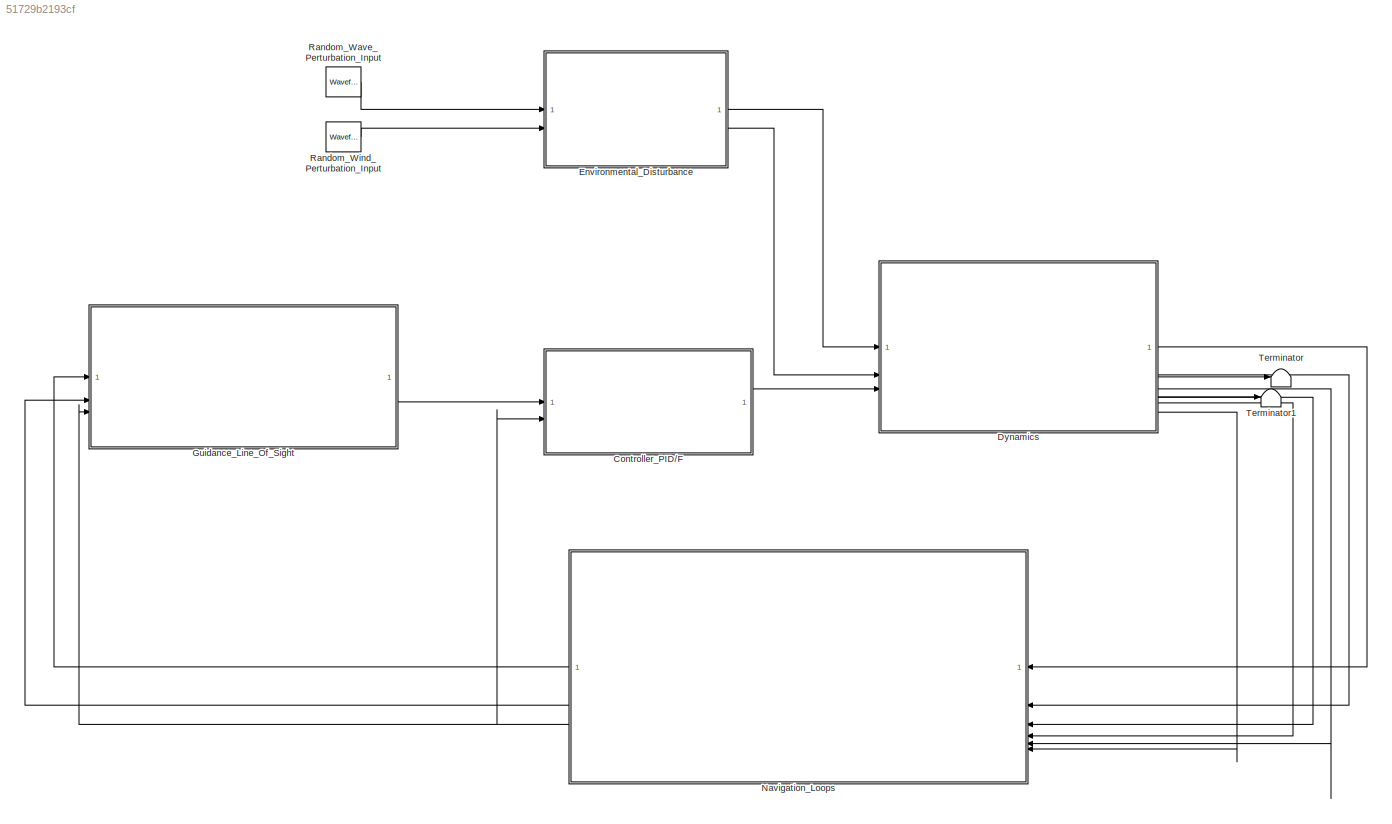
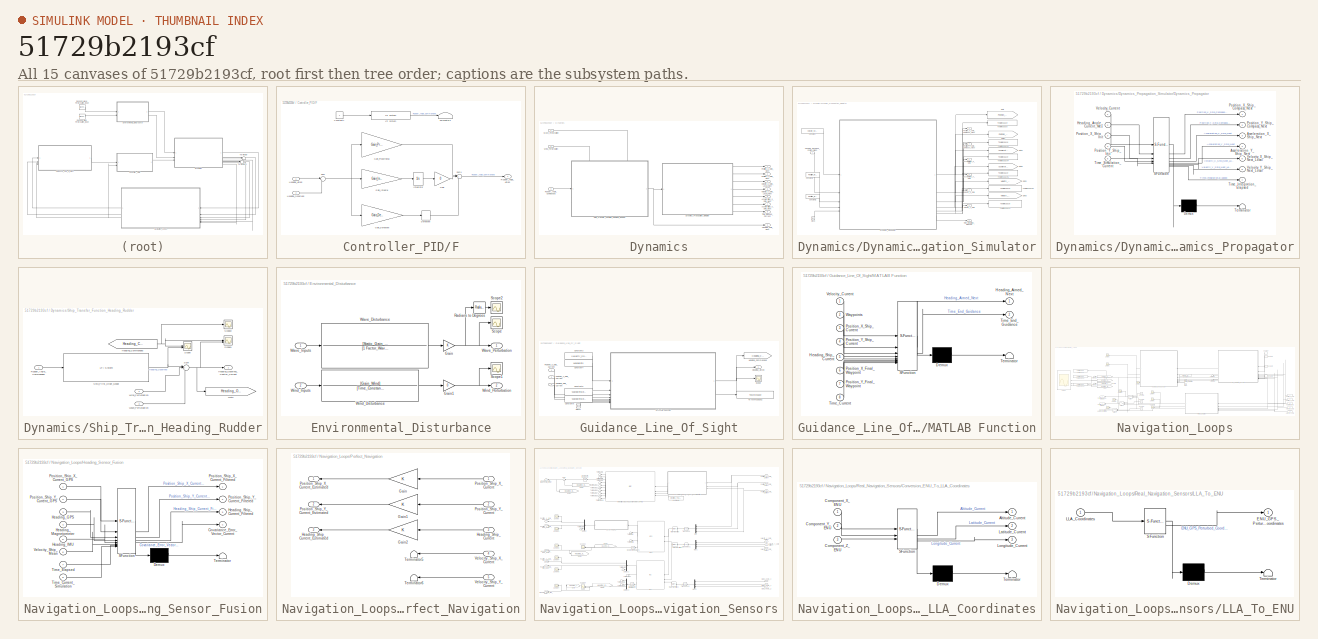
[diagram: thumbnail index - all 15 canvases of the model, root first then tree order]
MODEL slx_51729b2193cf
KIND model
CONFIG AbsTol = auto
CONFIG EnableMultiTasking = off
CONFIG FixedStep = auto
CONFIG MaxStep = auto
CONFIG MinStep = auto
CONFIG RelTol = 1e-3
CONFIG SampleTimeConstraint = Unconstrained
CONFIG SolverName = VariableStepAuto
CONFIG StartTime = 0.0
CONFIG StopTime = 2800
BLOCK [SubSystem] Controller_PID//F
BLOCK [Constant] Controller_PID//F/Constant7
BLOCK [Derivative] Controller_PID//F/Derivative
BLOCK [Gain] Controller_PID//F/Gain
  Gain = 0
BLOCK [Gain] Controller_PID//F/Gain_Derivative
  Gain = Gain_Derivative_Controller
BLOCK [Gain] Controller_PID//F/Gain_Integral
  Gain = Gain_Integral_Controller
BLOCK [Gain] Controller_PID//F/Gain_Proportional
  Gain = Gain_Proportional_Controller
BLOCK [Inport] Controller_PID//F/Heading_Aimed
BLOCK [Inport] Controller_PID//F/Heading_Observed
  Port = 2
BLOCK [Integrator] Controller_PID//F/Integrator
  InitialCondition = -5*(pi/180)
BLOCK [Reference] Controller_PID//F/LTI System  REF=cstblocks/LTI System
  SourceBlock = cstblocks/LTI System
  SourceType = LTI Block
BLOCK [Outport] Controller_PID//F/Rudder_Angle_Aimed
BLOCK [Sum] Controller_PID//F/Sum
  Inputs = |+-
BLOCK [Sum] Controller_PID//F/Sum1
  Inputs = |+++
BLOCK [Terminator] Controller_PID//F/Terminator3
BLOCK [SubSystem] Dynamics
BLOCK [Outport] Dynamics/Acceleration_X_Ship_Next
  Port = 6
BLOCK [Outport] Dynamics/Acceleration_Y_Ship_Next
  Port = 7
BLOCK [SubSystem] Dynamics/Dynamics_Propagation_Simulator
BLOCK [Outport] Dynamics/Dynamics_Propagation_Simulator/Acceleration_X_Ship
  Port = 5
BLOCK [Outport] Dynamics/Dynamics_Propagation_Simulator/Acceleration_Y_Ship
  Port = 6
BLOCK [Clock] Dynamics/Dynamics_Propagation_Simulator/Clock
BLOCK [Constant] Dynamics/Dynamics_Propagation_Simulator/Constant
  Value = Velocity_Ship_Mean
BLOCK [Constant] Dynamics/Dynamics_Propagation_Simulator/Constant1
  Value = Position_Initial_X
BLOCK [Constant] Dynamics/Dynamics_Propagation_Simulator/Constant2
  Value = Position_Initial_Y
BLOCK [SubSystem] Dynamics/Dynamics_Propagation_Simulator/Dynamics_Propagator
  ErrorFcn = Stateflow.Translate.translate
  PermitHierarchicalResolution = ExplicitOnly
  SFBlockType = MATLAB Function
  TreatAsAtomicUnit = on
BLOCK [Demux] Dynamics/Dynamics_Propagation_Simulator/Dynamics_Propagator/ Demux 
  Outputs = 1
BLOCK [S-Function] Dynamics/Dynamics_Propagation_Simulator/Dynamics_Propagator/ SFunction 
  EnableBusSupport = on
  FunctionName = sf_sfun
  PortCounts = [5 8]
  SFcnIsStateOwnerBlock = off
  SFunctionDeploymentMode = off
  Tag = Stateflow S-Function 2
BLOCK [Terminator] Dynamics/Dynamics_Propagation_Simulator/Dynamics_Propagator/ Terminator 
BLOCK [Outport] Dynamics/Dynamics_Propagation_Simulator/Dynamics_Propagator/Acceleration_X_Ship_Next
  Port = 3
BLOCK [Outport] Dynamics/Dynamics_Propagation_Simulator/Dynamics_Propagator/Acceleration_Y_Ship_Next
  Port = 4
BLOCK [Inport] Dynamics/Dynamics_Propagation_Simulator/Dynamics_Propagator/Heading_Angle_Current_Mes
  Port = 2
BLOCK [Outport] Dynamics/Dynamics_Propagation_Simulator/Dynamics_Propagator/Position_X_Ship_Compass_Next
BLOCK [Inport] Dynamics/Dynamics_Propagation_Simulator/Dynamics_Propagator/Position_X_Ship_Init
  Port = 3
BLOCK [Outport] Dynamics/Dynamics_Propagation_Simulator/Dynamics_Propagator/Position_Y_Ship_Compass_Next
  Port = 2
BLOCK [Inport] Dynamics/Dynamics_Propagation_Simulator/Dynamics_Propagator/Position_Y_Ship_Init
  Port = 4
BLOCK [Outport] Dynamics/Dynamics_Propagation_Simulator/Dynamics_Propagator/Time_Integration_Elapsed
  Port = 7
BLOCK [Inport] Dynamics/Dynamics_Propagation_Simulator/Dynamics_Propagator/Time_Simulation_Current
  Port = 5
BLOCK [Inport] Dynamics/Dynamics_Propagation_Simulator/Dynamics_Propagator/Velocity_Current
BLOCK [Outport] Dynamics/Dynamics_Propagation_Simulator/Dynamics_Propagator/Velocity_X_Ship_Next_Local
  Port = 5
BLOCK [Outport] Dynamics/Dynamics_Propagation_Simulator/Dynamics_Propagator/Velocity_Y_Ship_Next_Local
  Port = 6
BLOCK [Goto] Dynamics/Dynamics_Propagation_Simulator/Goto
  GotoTag = Position_Ship_X_Axis_Current
  TagVisibility = global
BLOCK [Goto] Dynamics/Dynamics_Propagation_Simulator/Goto1
  GotoTag = Position_Ship_Y_Axis_Current
  TagVisibility = global
BLOCK [Goto] Dynamics/Dynamics_Propagation_Simulator/Goto2
  GotoTag = Velocity_Ship_X_Axis_Current
  TagVisibility = global
BLOCK [Goto] Dynamics/Dynamics_Propagation_Simulator/Goto3
  GotoTag = Velocity_Ship_Y_Axis_Current
  TagVisibility = global
BLOCK [Goto] Dynamics/Dynamics_Propagation_Simulator/Goto4
  GotoTag = Acceleration_Ship_X_Axis
  TagVisibility = global
BLOCK [Goto] Dynamics/Dynamics_Propagation_Simulator/Goto5
  GotoTag = Acceleration_Ship_Y_Axis
  TagVisibility = global
BLOCK [Inport] Dynamics/Dynamics_Propagation_Simulator/Heading_Observed_Control_Current
BLOCK [Outport] Dynamics/Dynamics_Propagation_Simulator/Position_X_Ship_Compass_Next
BLOCK [Outport] Dynamics/Dynamics_Propagation_Simulator/Position_Y_Ship_Compass_Next
  Port = 2
BLOCK [Outport] Dynamics/Dynamics_Propagation_Simulator/Time_Integration_Elapsed
  Port = 7
BLOCK [ToWorkspace] Dynamics/Dynamics_Propagation_Simulator/To Workspace
  FixptAsFi = on
  MaxDataPoints = inf
  SampleTime = -1
  SaveFormat = Timeseries
  VariableName = Position_Along_X_Axis
BLOCK [ToWorkspace] Dynamics/Dynamics_Propagation_Simulator/To Workspace1
  FixptAsFi = on
  MaxDataPoints = inf
  SampleTime = -1
  SaveFormat = Timeseries
  VariableName = Position_Along_Y_Axis
BLOCK [ToWorkspace] Dynamics/Dynamics_Propagation_Simulator/To Workspace4
  FixptAsFi = on
  MaxDataPoints = inf
  SampleTime = -1
  SaveFormat = Timeseries
  VariableName = Acceleration_Along_X_Axis
BLOCK [ToWorkspace] Dynamics/Dynamics_Propagation_Simulator/To Workspace5
  FixptAsFi = on
  MaxDataPoints = inf
  SampleTime = -1
  SaveFormat = Timeseries
  VariableName = Acceleration_Along_Y_Axis
BLOCK [ToWorkspace] Dynamics/Dynamics_Propagation_Simulator/To Workspace6
  FixptAsFi = on
  MaxDataPoints = inf
  SampleTime = -1
  SaveFormat = Timeseries
  VariableName = Velocity_Along_X_Axis_Local
BLOCK [ToWorkspace] Dynamics/Dynamics_Propagation_Simulator/To Workspace7
  FixptAsFi = on
  MaxDataPoints = inf
  SampleTime = -1
  SaveFormat = Timeseries
  VariableName = Velocity_Along_Y_Axis_Local
BLOCK [Outport] Dynamics/Dynamics_Propagation_Simulator/Velocity_X_Ship
  Port = 3
BLOCK [Outport] Dynamics/Dynamics_Propagation_Simulator/Velocity_Y_Ship
  Port = 4
BLOCK [Outport] Dynamics/Heading_Ship_Next
  Port = 3
BLOCK [Outport] Dynamics/Position_X_Ship_Next
BLOCK [Outport] Dynamics/Position_Y_Ship_Next
  Port = 2
BLOCK [Inport] Dynamics/Rudder_Angle_Commanded
  Port = 3
BLOCK [SubSystem] Dynamics/Ship_Transfer_Function_Heading_Rudder
  PortSchema = {"entries":[{"content":{"sides":[{"content":{"connectorIds":["In1"]},"type":"ConnectorPlacement.EquallySpacedRectSide","uuid":"39a47681-8a87-4f22-9e16-0ead526089e0"},{"content":{"connectorIds":["Out1"],"side":"RIGHT"},"type":"ConnectorPlacement.EquallySpacedRectSide","uuid":"e7d068dc-643f-44db-a553-0a54b66f6b70"},{"content":{"connectorIds":["In2","In3"],"side":"TOP"},"type":"ConnectorPlacement.Equ...<+251ch>
BLOCK [Goto] Dynamics/Ship_Transfer_Function_Heading_Rudder/Goto
  GotoTag = Heading_Observed_Control
  TagVisibility = global
BLOCK [From] Dynamics/Ship_Transfer_Function_Heading_Rudder/Heading_Commanded
  GotoTag = Heading_Commanded
  TagVisibility = global
BLOCK [Outport] Dynamics/Ship_Transfer_Function_Heading_Rudder/Heading_Observed_Control_Current
BLOCK [Inport] Dynamics/Ship_Transfer_Function_Heading_Rudder/Rudder_Angle_Commanded
BLOCK [Scope] Dynamics/Ship_Transfer_Function_Heading_Rudder/Scope
  Floating = off
  NumInputPorts = 2
  ScopeSpecificationString = Simulink.scopes.TimeScopeBlockCfg('CurrentConfiguration', extmgr.ConfigurationSet(extmgr.Configuration('Core','General UI',true),extmgr.Configuration('Core','Source UI',true),extmgr.Configuration('Sources','WiredSimulink',true),extmgr.Configuration('Visuals','Time Domain',true,'SerializedDisplays',{struct('MinYLimReal','2.46074','MaxYLimReal','2.46413','YLabelReal','','MinYLimMag','2.46074','MaxYL...<+1519ch>
BLOCK [Scope] Dynamics/Ship_Transfer_Function_Heading_Rudder/Scope1
  Floating = off
  NumInputPorts = 2
  ScopeSpecificationString = Simulink.scopes.TimeScopeBlockCfg('CurrentConfiguration', extmgr.ConfigurationSet(extmgr.Configuration('Core','General UI',true),extmgr.Configuration('Core','Source UI',true),extmgr.Configuration('Sources','WiredSimulink',true,'DataLoggingVariableName','ScopeData3'),extmgr.Configuration('Visuals','Time Domain',true,'SerializedDisplays',{struct('MinYLimReal','-5.67588','MaxYLimReal','11.66035','YLa...<+1551ch>
BLOCK [Scope] Dynamics/Ship_Transfer_Function_Heading_Rudder/Scope2
  Floating = off
  NumInputPorts = 1
  ScopeSpecificationString = Simulink.scopes.TimeScopeBlockCfg('CurrentConfiguration', extmgr.ConfigurationSet(extmgr.Configuration('Core','General UI',true),extmgr.Configuration('Core','Source UI',true),extmgr.Configuration('Sources','WiredSimulink',true,'DataLoggingVariableName','ScopeData7'),extmgr.Configuration('Visuals','Time Domain',true,'SerializedDisplays',{struct('MinYLimReal','0.89224','MaxYLimReal','2.73808','YLabe...<+1510ch>
BLOCK [Reference] Dynamics/Ship_Transfer_Function_Heading_Rudder/Ship_First_Order_Model  REF=cstblocks/LTI System
  SourceBlock = cstblocks/LTI System
  SourceType = LTI Block
BLOCK [Sum] Dynamics/Ship_Transfer_Function_Heading_Rudder/Sum
  Inputs = |+++
BLOCK [Inport] Dynamics/Ship_Transfer_Function_Heading_Rudder/Wave_Perturbation
  Port = 3
BLOCK [Inport] Dynamics/Ship_Transfer_Function_Heading_Rudder/Wind_Perturbation
  Port = 2
BLOCK [Outport] Dynamics/Time_Elapsed_Current
  Port = 8
BLOCK [Outport] Dynamics/Velocity_X_Ship_Local_Next
  Port = 4
BLOCK [Outport] Dynamics/Velocity_Y_Ship_Local_Next
  Port = 5
BLOCK [Inport] Dynamics/Wave_Perturbation
BLOCK [Inport] Dynamics/Wind_Perturbation
  Port = 2
BLOCK [SubSystem] Environmental_Disturbance
BLOCK [Gain] Environmental_Disturbance/Gain
BLOCK [Gain] Environmental_Disturbance/Gain1
  Gain = 0
BLOCK [Reference] Environmental_Disturbance/Radians to Degrees  REF=simulink_extras/Transformations/Radians
to Degrees
  SourceBlock = simulink_extras/Transformations/Radians\nto Degrees
  SourceType = RadiansToDegrees
BLOCK [Scope] Environmental_Disturbance/Scope
  Floating = off
  NumInputPorts = 1
  ScopeSpecificationString = Simulink.scopes.TimeScopeBlockCfg('CurrentConfiguration', extmgr.ConfigurationSet(extmgr.Configuration('Core','General UI',true),extmgr.Configuration('Core','Source UI',true),extmgr.Configuration('Sources','WiredSimulink',true,'DataLoggingVariableName','ScopeData1'),extmgr.Configuration('Visuals','Time Domain',true,'SerializedDisplays',{struct('MinYLimReal','-0.01261','MaxYLimReal','0.01559','YLab...<+1496ch>
BLOCK [Scope] Environmental_Disturbance/Scope1
  Floating = off
  NumInputPorts = 1
  ScopeSpecificationString = Simulink.scopes.TimeScopeBlockCfg('CurrentConfiguration', extmgr.ConfigurationSet(extmgr.Configuration('Core','General UI',true),extmgr.Configuration('Core','Source UI',true),extmgr.Configuration('Sources','WiredSimulink',true,'DataLoggingVariableName','ScopeData2'),extmgr.Configuration('Visuals','Time Domain',true,'SerializedDisplays',{struct('MinYLimReal','-1.00000','MaxYLimReal','1.00000','YLab...<+1530ch>
BLOCK [Scope] Environmental_Disturbance/Scope2
  Floating = off
  NumInputPorts = 1
  ScopeSpecificationString = Simulink.scopes.TimeScopeBlockCfg('CurrentConfiguration', extmgr.ConfigurationSet(extmgr.Configuration('Core','General UI',true),extmgr.Configuration('Core','Source UI',true),extmgr.Configuration('Sources','WiredSimulink',true,'DataLoggingVariableName','ScopeData2'),extmgr.Configuration('Visuals','Time Domain',true,'SerializedDisplays',{struct('MinYLimReal','-0.72231','MaxYLimReal','0.89342','YLab...<+1510ch>
BLOCK [TransferFcn] Environmental_Disturbance/Wave_Disturbance
  Denominator = [1 Factor_Wave_2 Factor_Wave_1]
  Numerator = [Static_Gain_Waves]
BLOCK [Inport] Environmental_Disturbance/Wave_Inputs
BLOCK [Outport] Environmental_Disturbance/Wave_Perturbation
BLOCK [TransferFcn] Environmental_Disturbance/Wind_Disturbance
  Denominator = [Time_Constant_Wind 1]
  Numerator = [Gain_Wind]
BLOCK [Inport] Environmental_Disturbance/Wind_Inputs
  Port = 2
BLOCK [Outport] Environmental_Disturbance/Wind_Perturbation
  Port = 2
BLOCK [SubSystem] Guidance_Line_Of_Sight
BLOCK [Clock] Guidance_Line_Of_Sight/Clock1
BLOCK [Constant] Guidance_Line_Of_Sight/Constant3
  Value = Velocity_Ship_Mean
BLOCK [Constant] Guidance_Line_Of_Sight/Constant4
  Value = Waypoints
BLOCK [Constant] Guidance_Line_Of_Sight/Constant5
  Value = Waypoints(end,1)
BLOCK [Constant] Guidance_Line_Of_Sight/Constant6
  Value = Waypoints(end,2)
BLOCK [Outport] Guidance_Line_Of_Sight/Heading_Aimed
BLOCK [Goto] Guidance_Line_Of_Sight/Heading_Commanded
  GotoTag = Heading_Commanded
  TagVisibility = global
BLOCK [Inport] Guidance_Line_Of_Sight/Heading_Ship_Current
  Port = 3
BLOCK [SubSystem] Guidance_Line_Of_Sight/MATLAB Function
  ErrorFcn = Stateflow.Translate.translate
  PermitHierarchicalResolution = ExplicitOnly
  SFBlockType = MATLAB Function
  TreatAsAtomicUnit = on
BLOCK [Demux] Guidance_Line_Of_Sight/MATLAB Function/ Demux 
  Outputs = 1
BLOCK [S-Function] Guidance_Line_Of_Sight/MATLAB Function/ SFunction 
  EnableBusSupport = on
  FunctionName = sf_sfun
  PortCounts = [8 3]
  SFcnIsStateOwnerBlock = off
  SFunctionDeploymentMode = off
  Tag = Stateflow S-Function 1
BLOCK [Terminator] Guidance_Line_Of_Sight/MATLAB Function/ Terminator 
BLOCK [Outport] Guidance_Line_Of_Sight/MATLAB Function/Heading_Aimed_Next
BLOCK [Inport] Guidance_Line_Of_Sight/MATLAB Function/Heading_Ship_Current
  Port = 5
BLOCK [Inport] Guidance_Line_Of_Sight/MATLAB Function/Position_X_Final_Waypoint
  Port = 6
BLOCK [Inport] Guidance_Line_Of_Sight/MATLAB Function/Position_X_Ship_Current
  Port = 3
BLOCK [Inport] Guidance_Line_Of_Sight/MATLAB Function/Position_Y_Final_Waypoint
  Port = 7
BLOCK [Inport] Guidance_Line_Of_Sight/MATLAB Function/Position_Y_Ship_Current
  Port = 4
BLOCK [Inport] Guidance_Line_Of_Sight/MATLAB Function/Time_Current
  Port = 8
BLOCK [Outport] Guidance_Line_Of_Sight/MATLAB Function/Time_End_Guidance
  Port = 2
BLOCK [Inport] Guidance_Line_Of_Sight/MATLAB Function/Velocity_Current
BLOCK [Inport] Guidance_Line_Of_Sight/MATLAB Function/Waypoints
  Port = 2
BLOCK [Inport] Guidance_Line_Of_Sight/Position_X_Ship_Current
BLOCK [Inport] Guidance_Line_Of_Sight/Position_Y_Ship_Current
  Port = 2
BLOCK [Scope] Guidance_Line_Of_Sight/Scope
  Floating = off
  NumInputPorts = 1
  ScopeSpecificationString = Simulink.scopes.TimeScopeBlockCfg('CurrentConfiguration', extmgr.ConfigurationSet(extmgr.Configuration('Core','General UI',true),extmgr.Configuration('Core','Source UI',true),extmgr.Configuration('Sources','WiredSimulink',true,'DataLoggingVariableName','ScopeData1'),extmgr.Configuration('Visuals','Time Domain',true),extmgr.Configuration('Tools','Plot Navigation',true),extmgr.Configuration('Tools',...<+40ch>
BLOCK [ToWorkspace] Guidance_Line_Of_Sight/To Workspace2
  FixptAsFi = on
  MaxDataPoints = inf
  SampleTime = -1
  SaveFormat = Timeseries
  VariableName = Time_End_Guidance_Algorithm
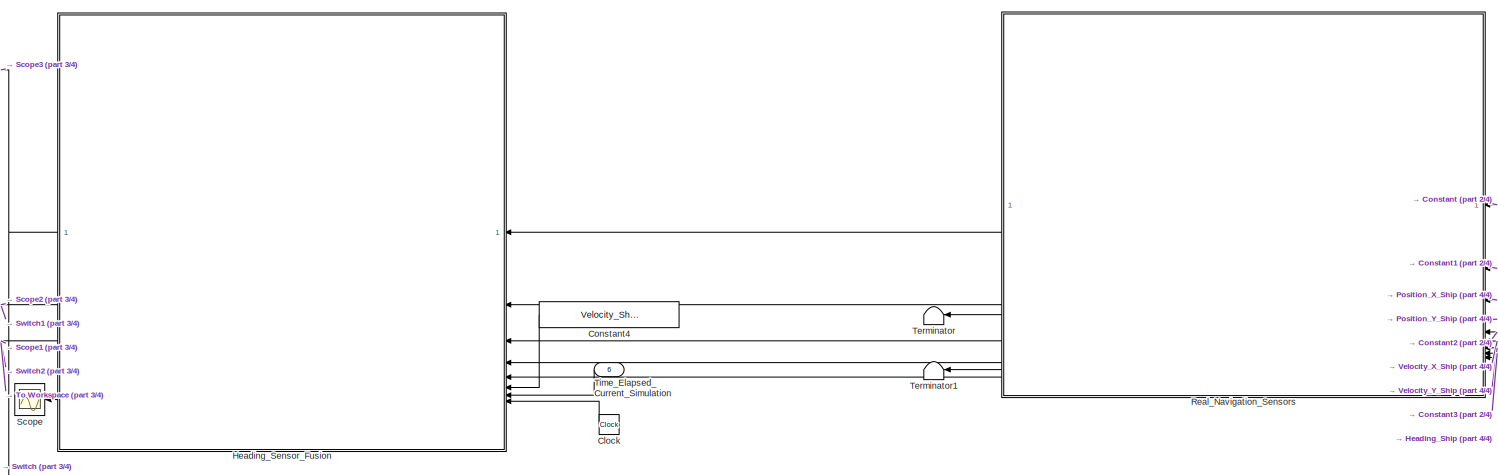
[diagram: Navigation_Loops - part 1/4, top center region]
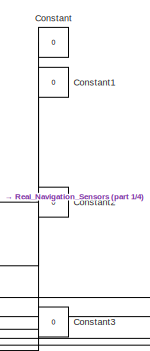
[diagram: Navigation_Loops - part 2/4, top right region]
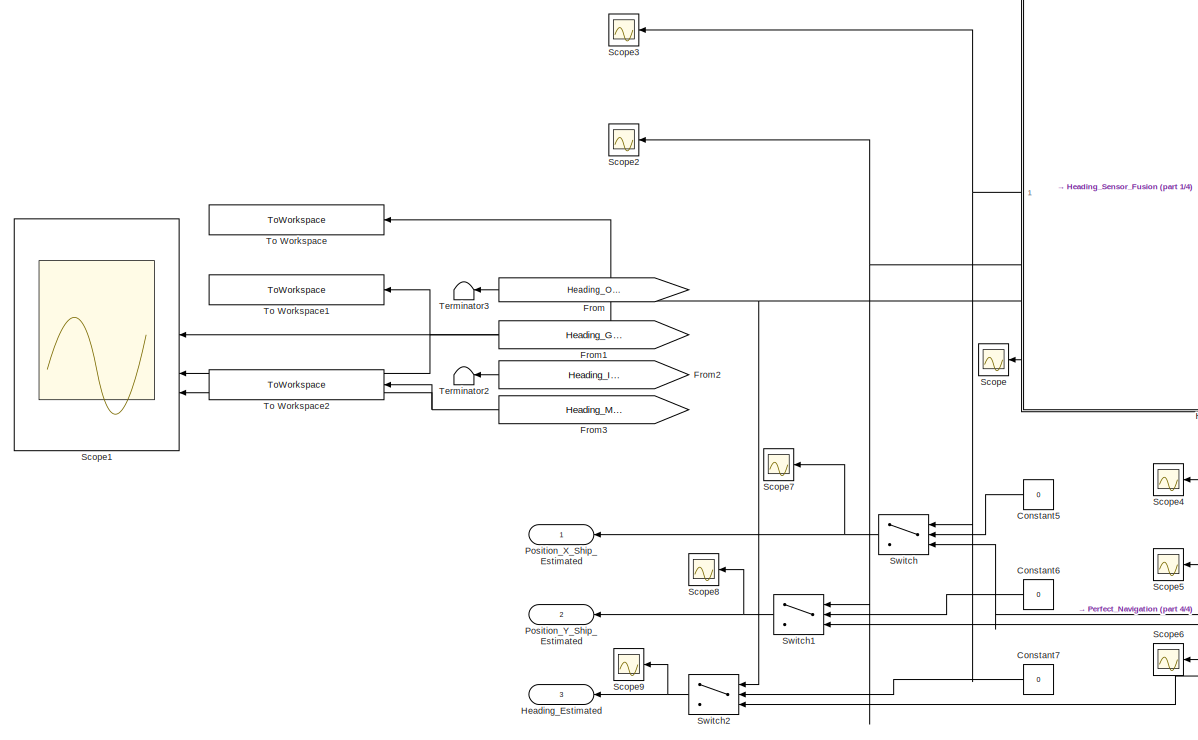
[diagram: Navigation_Loops - part 3/4, left side, full height]
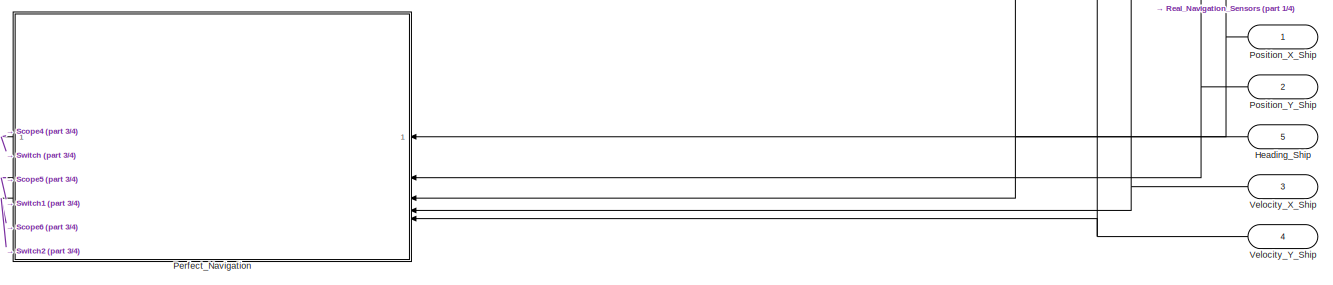
[diagram: Navigation_Loops - part 4/4, bottom right region]
BLOCK [SubSystem] Navigation_Loops
BLOCK [Clock] Navigation_Loops/Clock
BLOCK [Constant] Navigation_Loops/Constant
  Value = 0
BLOCK [Constant] Navigation_Loops/Constant1
  Value = 0
BLOCK [Constant] Navigation_Loops/Constant2
  Value = 0
BLOCK [Constant] Navigation_Loops/Constant3
  Value = 0
BLOCK [Constant] Navigation_Loops/Constant4
  Value = Velocity_Ship_Mean
BLOCK [Constant] Navigation_Loops/Constant5
  Value = 0
BLOCK [Constant] Navigation_Loops/Constant6
  Value = 0
BLOCK [Constant] Navigation_Loops/Constant7
  Value = 0
BLOCK [From] Navigation_Loops/From
  GotoTag = Heading_Observed_Control
  TagVisibility = global
BLOCK [From] Navigation_Loops/From1
  GotoTag = Heading_GPS_Noisy
  TagVisibility = global
BLOCK [From] Navigation_Loops/From2
  GotoTag = Heading_IMU_Noisy
  TagVisibility = global
BLOCK [From] Navigation_Loops/From3
  GotoTag = Heading_Magnetometer_Noisy
  TagVisibility = global
BLOCK [Outport] Navigation_Loops/Heading_Estimated
  Port = 3
BLOCK [SubSystem] Navigation_Loops/Heading_Sensor_Fusion
  ErrorFcn = Stateflow.Translate.translate
  PermitHierarchicalResolution = ExplicitOnly
  SFBlockType = MATLAB Function
  TreatAsAtomicUnit = on
BLOCK [Demux] Navigation_Loops/Heading_Sensor_Fusion/ Demux 
  Outputs = 1
BLOCK [S-Function] Navigation_Loops/Heading_Sensor_Fusion/ SFunction 
  EnableBusSupport = on
  FunctionName = sf_sfun
  PortCounts = [8 5]
  SFcnIsStateOwnerBlock = off
  SFunctionDeploymentMode = off
  Tag = Stateflow S-Function 5
BLOCK [Terminator] Navigation_Loops/Heading_Sensor_Fusion/ Terminator 
BLOCK [Outport] Navigation_Loops/Heading_Sensor_Fusion/Covariance_Error_Vector_Current
  Port = 4
BLOCK [Inport] Navigation_Loops/Heading_Sensor_Fusion/Heading_GPS
  Port = 3
BLOCK [Inport] Navigation_Loops/Heading_Sensor_Fusion/Heading_IMU
  Port = 5
BLOCK [Inport] Navigation_Loops/Heading_Sensor_Fusion/Heading_Magnetometer
  Port = 4
BLOCK [Outport] Navigation_Loops/Heading_Sensor_Fusion/Heading_Ship_Current_Filtered
  Port = 3
BLOCK [Outport] Navigation_Loops/Heading_Sensor_Fusion/Position_Ship_X_Current_Filtered
BLOCK [Inport] Navigation_Loops/Heading_Sensor_Fusion/Position_Ship_X_Current_GPS
BLOCK [Outport] Navigation_Loops/Heading_Sensor_Fusion/Position_Ship_Y_Current_Filtered
  Port = 2
BLOCK [Inport] Navigation_Loops/Heading_Sensor_Fusion/Position_Ship_Y_Current_GPS
  Port = 2
BLOCK [Inport] Navigation_Loops/Heading_Sensor_Fusion/Time_Current_Simulation
  Port = 8
BLOCK [Inport] Navigation_Loops/Heading_Sensor_Fusion/Time_Elapsed
  Port = 7
BLOCK [Inport] Navigation_Loops/Heading_Sensor_Fusion/Velocity_Ship_Mean
  Port = 6
BLOCK [Inport] Navigation_Loops/Heading_Ship
  Port = 5
BLOCK [SubSystem] Navigation_Loops/Perfect_Navigation
BLOCK [Gain] Navigation_Loops/Perfect_Navigation/Gain
BLOCK [Gain] Navigation_Loops/Perfect_Navigation/Gain1
BLOCK [Gain] Navigation_Loops/Perfect_Navigation/Gain2
BLOCK [Inport] Navigation_Loops/Perfect_Navigation/Heading_Ship_Current
  Port = 3
BLOCK [Outport] Navigation_Loops/Perfect_Navigation/Heading_Ship_Current_Estimated
  Port = 3
BLOCK [Inport] Navigation_Loops/Perfect_Navigation/Position_Ship_X_Current
BLOCK [Outport] Navigation_Loops/Perfect_Navigation/Position_Ship_X_Current_Estimated
BLOCK [Inport] Navigation_Loops/Perfect_Navigation/Position_Ship_Y_Current
  Port = 2
BLOCK [Outport] Navigation_Loops/Perfect_Navigation/Position_Ship_Y_Current_Estimated
  Port = 2
BLOCK [Terminator] Navigation_Loops/Perfect_Navigation/Terminator5
BLOCK [Terminator] Navigation_Loops/Perfect_Navigation/Terminator6
BLOCK [Inport] Navigation_Loops/Perfect_Navigation/Velocity_Ship_X_Current
  Port = 4
BLOCK [Inport] Navigation_Loops/Perfect_Navigation/Velocity_Ship_Y_Current
  Port = 5
BLOCK [Inport] Navigation_Loops/Position_X_Ship
BLOCK [Outport] Navigation_Loops/Position_X_Ship_Estimated
BLOCK [Inport] Navigation_Loops/Position_Y_Ship
  Port = 2
BLOCK [Outport] Navigation_Loops/Position_Y_Ship_Estimated
  Port = 2
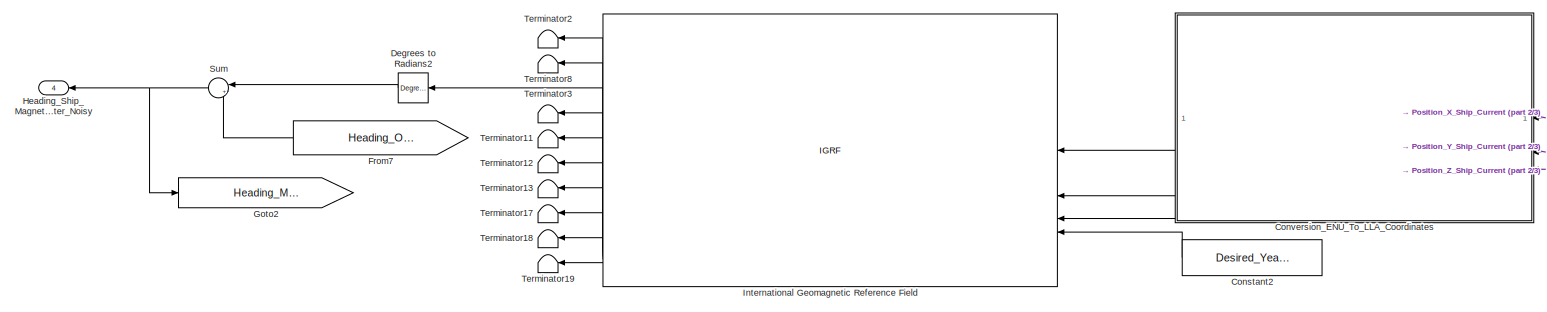
[diagram: Navigation_Loops/Real_Navigation_Sensors - part 1/3, top center region]
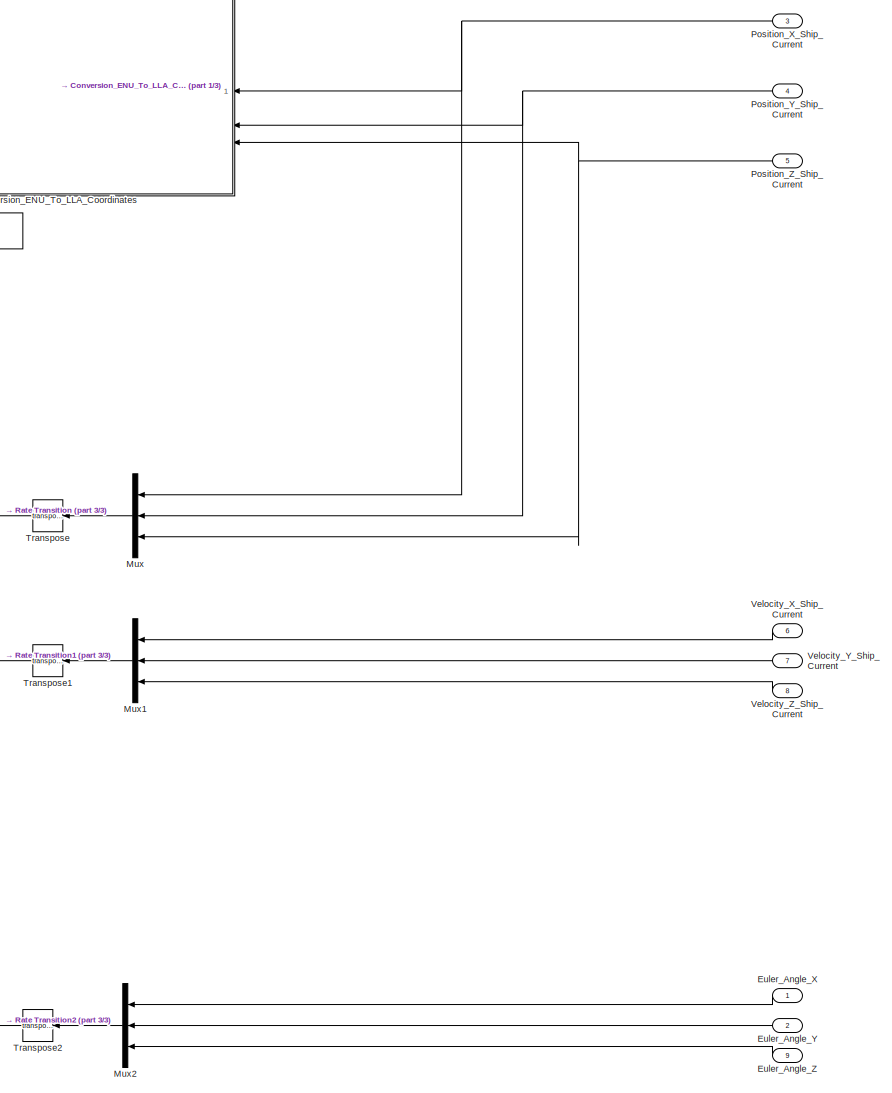
[diagram: Navigation_Loops/Real_Navigation_Sensors - part 2/3, right side, full height]
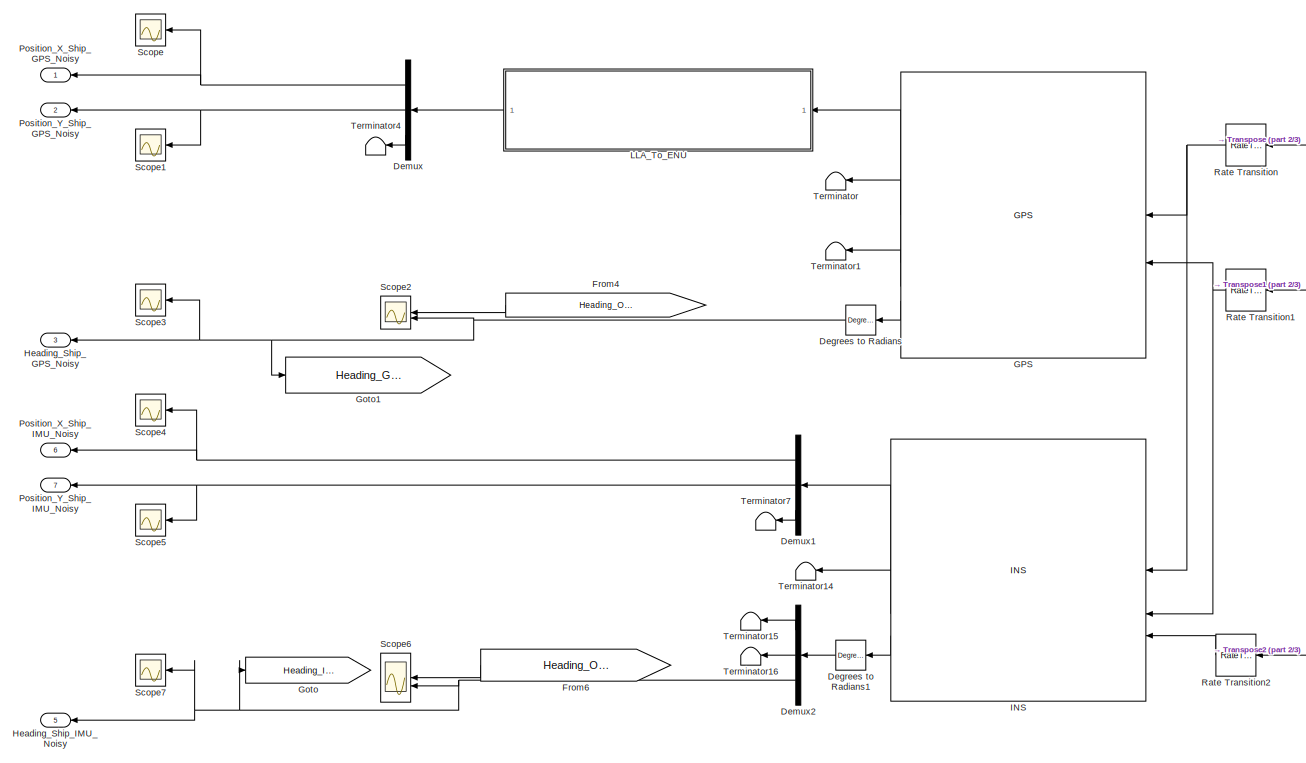
[diagram: Navigation_Loops/Real_Navigation_Sensors - part 3/3, bottom left region]
BLOCK [SubSystem] Navigation_Loops/Real_Navigation_Sensors
BLOCK [Constant] Navigation_Loops/Real_Navigation_Sensors/Constant2
  Value = Desired_Year_IGRF
BLOCK [SubSystem] Navigation_Loops/Real_Navigation_Sensors/Conversion_ENU_To_LLA_Coordinates
  ErrorFcn = Stateflow.Translate.translate
  PermitHierarchicalResolution = ExplicitOnly
  SFBlockType = MATLAB Function
  TreatAsAtomicUnit = on
BLOCK [Demux] Navigation_Loops/Real_Navigation_Sensors/Conversion_ENU_To_LLA_Coordinates/ Demux 
  Outputs = 1
BLOCK [S-Function] Navigation_Loops/Real_Navigation_Sensors/Conversion_ENU_To_LLA_Coordinates/ SFunction 
  EnableBusSupport = on
  FunctionName = sf_sfun
  PortCounts = [3 4]
  SFcnIsStateOwnerBlock = off
  SFunctionDeploymentMode = off
  Tag = Stateflow S-Function 4
BLOCK [Terminator] Navigation_Loops/Real_Navigation_Sensors/Conversion_ENU_To_LLA_Coordinates/ Terminator 
BLOCK [Outport] Navigation_Loops/Real_Navigation_Sensors/Conversion_ENU_To_LLA_Coordinates/Altitude_Current
BLOCK [Inport] Navigation_Loops/Real_Navigation_Sensors/Conversion_ENU_To_LLA_Coordinates/Component_X_ENU
BLOCK [Inport] Navigation_Loops/Real_Navigation_Sensors/Conversion_ENU_To_LLA_Coordinates/Component_Y_ENU
  Port = 2
BLOCK [Inport] Navigation_Loops/Real_Navigation_Sensors/Conversion_ENU_To_LLA_Coordinates/Component_Z_ENU
  Port = 3
BLOCK [Outport] Navigation_Loops/Real_Navigation_Sensors/Conversion_ENU_To_LLA_Coordinates/Latitude_Current
  Port = 2
BLOCK [Outport] Navigation_Loops/Real_Navigation_Sensors/Conversion_ENU_To_LLA_Coordinates/Longitude_Current
  Port = 3
BLOCK [Reference] Navigation_Loops/Real_Navigation_Sensors/Degrees to Radians  REF=simulink_extras/Transformations/Degrees to
Radians
  SourceBlock = simulink_extras/Transformations/Degrees to\nRadians
  SourceType = DegreesToRadians
BLOCK [Reference] Navigation_Loops/Real_Navigation_Sensors/Degrees to Radians1  REF=simulink_extras/Transformations/Degrees to
Radians
  SourceBlock = simulink_extras/Transformations/Degrees to\nRadians
  SourceType = DegreesToRadians
BLOCK [Reference] Navigation_Loops/Real_Navigation_Sensors/Degrees to Radians2  REF=simulink_extras/Transformations/Degrees to
Radians
  NameLocation = top
  SourceBlock = simulink_extras/Transformations/Degrees to\nRadians
  SourceType = DegreesToRadians
BLOCK [Demux] Navigation_Loops/Real_Navigation_Sensors/Demux
  Outputs = 3
BLOCK [Demux] Navigation_Loops/Real_Navigation_Sensors/Demux1
  Outputs = 3
BLOCK [Demux] Navigation_Loops/Real_Navigation_Sensors/Demux2
  Outputs = 3
BLOCK [Inport] Navigation_Loops/Real_Navigation_Sensors/Euler_Angle_X
BLOCK [Inport] Navigation_Loops/Real_Navigation_Sensors/Euler_Angle_Y
  Port = 2
BLOCK [Inport] Navigation_Loops/Real_Navigation_Sensors/Euler_Angle_Z
  Port = 9
BLOCK [From] Navigation_Loops/Real_Navigation_Sensors/From4
  GotoTag = Heading_Observed_Control
  TagVisibility = global
BLOCK [From] Navigation_Loops/Real_Navigation_Sensors/From6
  GotoTag = Heading_Observed_Control
  TagVisibility = global
BLOCK [From] Navigation_Loops/Real_Navigation_Sensors/From7
  GotoTag = Heading_Observed_Control
  TagVisibility = global
BLOCK [Reference] Navigation_Loops/Real_Navigation_Sensors/GPS  REF=sensorgpslib/GPS
  SourceBlock = sensorgpslib/GPS
  SourceType = fusion.internal.simulink.gpsSensor
BLOCK [Goto] Navigation_Loops/Real_Navigation_Sensors/Goto
  GotoTag = Heading_IMU_Noisy
  TagVisibility = global
BLOCK [Goto] Navigation_Loops/Real_Navigation_Sensors/Goto1
  GotoTag = Heading_GPS_Noisy
  TagVisibility = global
BLOCK [Goto] Navigation_Loops/Real_Navigation_Sensors/Goto2
  GotoTag = Heading_Magnetometer_Noisy
  TagVisibility = global
BLOCK [Outport] Navigation_Loops/Real_Navigation_Sensors/Heading_Ship_GPS_Noisy
  Port = 3
BLOCK [Outport] Navigation_Loops/Real_Navigation_Sensors/Heading_Ship_IMU_Noisy
  Port = 5
BLOCK [Outport] Navigation_Loops/Real_Navigation_Sensors/Heading_Ship_Magnetometer_Noisy
  Port = 4
BLOCK [Reference] Navigation_Loops/Real_Navigation_Sensors/INS  REF=sensorinslib/INS
  SourceBlock = sensorinslib/INS
  SourceType = fusion.internal.simulink.insSensor
BLOCK [IGRF] Navigation_Loops/Real_Navigation_Sensors/International Geomagnetic Reference Field
  AttributesFormatString = %<generation>
  day = 1
  month = January
  year = 2020
BLOCK [SubSystem] Navigation_Loops/Real_Navigation_Sensors/LLA_To_ENU
  ErrorFcn = Stateflow.Translate.translate
  PermitHierarchicalResolution = ExplicitOnly
  SFBlockType = MATLAB Function
  TreatAsAtomicUnit = on
BLOCK [Demux] Navigation_Loops/Real_Navigation_Sensors/LLA_To_ENU/ Demux 
  Outputs = 1
BLOCK [S-Function] Navigation_Loops/Real_Navigation_Sensors/LLA_To_ENU/ SFunction 
  EnableBusSupport = on
  FunctionName = sf_sfun
  PortCounts = [1 2]
  SFcnIsStateOwnerBlock = off
  SFunctionDeploymentMode = off
  Tag = Stateflow S-Function 3
BLOCK [Terminator] Navigation_Loops/Real_Navigation_Sensors/LLA_To_ENU/ Terminator 
BLOCK [Outport] Navigation_Loops/Real_Navigation_Sensors/LLA_To_ENU/ENU_GPS_Perturbed_Coordinates
BLOCK [Inport] Navigation_Loops/Real_Navigation_Sensors/LLA_To_ENU/LLA_Coordinates
BLOCK [Mux] Navigation_Loops/Real_Navigation_Sensors/Mux
  DisplayOption = bar
  Inputs = 3
BLOCK [Mux] Navigation_Loops/Real_Navigation_Sensors/Mux1
  DisplayOption = bar
  Inputs = 3
BLOCK [Mux] Navigation_Loops/Real_Navigation_Sensors/Mux2
  DisplayOption = bar
  Inputs = 3
BLOCK [Inport] Navigation_Loops/Real_Navigation_Sensors/Position_X_Ship_Current
  Port = 3
BLOCK [Outport] Navigation_Loops/Real_Navigation_Sensors/Position_X_Ship_GPS_Noisy
BLOCK [Outport] Navigation_Loops/Real_Navigation_Sensors/Position_X_Ship_IMU_Noisy
  Port = 6
BLOCK [Inport] Navigation_Loops/Real_Navigation_Sensors/Position_Y_Ship_Current
  Port = 4
BLOCK [Outport] Navigation_Loops/Real_Navigation_Sensors/Position_Y_Ship_GPS_Noisy
  Port = 2
BLOCK [Outport] Navigation_Loops/Real_Navigation_Sensors/Position_Y_Ship_IMU_Noisy
  Port = 7
BLOCK [Inport] Navigation_Loops/Real_Navigation_Sensors/Position_Z_Ship_Current
  Port = 5
BLOCK [RateTransition] Navigation_Loops/Real_Navigation_Sensors/Rate Transition
  OutPortSampleTime = 0.01
BLOCK [RateTransition] Navigation_Loops/Real_Navigation_Sensors/Rate Transition1
  OutPortSampleTime = 0.01
BLOCK [RateTransition] Navigation_Loops/Real_Navigation_Sensors/Rate Transition2
  OutPortSampleTime = 0.01
BLOCK [Scope] Navigation_Loops/Real_Navigation_Sensors/Scope
  Floating = off
  NumInputPorts = 1
  ScopeSpecificationString = Simulink.scopes.TimeScopeBlockCfg('CurrentConfiguration', extmgr.ConfigurationSet(extmgr.Configuration('Core','General UI',true),extmgr.Configuration('Core','Source UI',true),extmgr.Configuration('Sources','WiredSimulink',true,'DataLoggingVariableName','ScopeData1'),extmgr.Configuration('Visuals','Time Domain',true,'SerializedDisplays',{struct('MinYLimReal','-2892.68159','MaxYLimReal','623.98404',...<+1519ch>
BLOCK [Scope] Navigation_Loops/Real_Navigation_Sensors/Scope1
  Floating = off
  NumInputPorts = 1
  ScopeSpecificationString = Simulink.scopes.TimeScopeBlockCfg('CurrentConfiguration', extmgr.ConfigurationSet(extmgr.Configuration('Core','General UI',true),extmgr.Configuration('Core','Source UI',true),extmgr.Configuration('Sources','WiredSimulink',true,'DataLoggingVariableName','ScopeData2'),extmgr.Configuration('Visuals','Time Domain',true,'SerializedDisplays',{struct('MinYLimReal','-442.14573','MaxYLimReal','2064.24009',...<+1517ch>
BLOCK [Scope] Navigation_Loops/Real_Navigation_Sensors/Scope2
  Floating = off
  NumInputPorts = 2
  ScopeSpecificationString = Simulink.scopes.TimeScopeBlockCfg('CurrentConfiguration', extmgr.ConfigurationSet(extmgr.Configuration('Core','General UI',true),extmgr.Configuration('Core','Source UI',true),extmgr.Configuration('Sources','WiredSimulink',true,'DataLoggingVariableName','ScopeData8'),extmgr.Configuration('Visuals','Time Domain',true,'SerializedDisplays',{struct('MinYLimReal','-93879148325352120489325016824231685945...<+3983ch>
BLOCK [Scope] Navigation_Loops/Real_Navigation_Sensors/Scope3
  Floating = off
  NumInputPorts = 1
  ScopeSpecificationString = Simulink.scopes.TimeScopeBlockCfg('CurrentConfiguration', extmgr.ConfigurationSet(extmgr.Configuration('Core','General UI',true),extmgr.Configuration('Core','Source UI',true),extmgr.Configuration('Sources','WiredSimulink',true,'DataLoggingVariableName','ScopeData5'),extmgr.Configuration('Visuals','Time Domain',true,'SerializedDisplays',{struct('MinYLimReal','2.45125','MaxYLimReal','2.46783','YLabe...<+1508ch>
BLOCK [Scope] Navigation_Loops/Real_Navigation_Sensors/Scope4
  Floating = off
  NumInputPorts = 1
  ScopeSpecificationString = Simulink.scopes.TimeScopeBlockCfg('CurrentConfiguration', extmgr.ConfigurationSet(extmgr.Configuration('Core','General UI',true),extmgr.Configuration('Core','Source UI',true),extmgr.Configuration('Sources','WiredSimulink',true,'DataLoggingVariableName','ScopeData3'),extmgr.Configuration('Visuals','Time Domain',true,'SerializedDisplays',{struct('MinYLimReal','1271.31997','MaxYLimReal','1300.9306','...<+1518ch>
BLOCK [Scope] Navigation_Loops/Real_Navigation_Sensors/Scope5
  Floating = off
  NumInputPorts = 1
  ScopeSpecificationString = Simulink.scopes.TimeScopeBlockCfg('CurrentConfiguration', extmgr.ConfigurationSet(extmgr.Configuration('Core','General UI',true),extmgr.Configuration('Core','Source UI',true),extmgr.Configuration('Sources','WiredSimulink',true,'DataLoggingVariableName','ScopeData4'),extmgr.Configuration('Visuals','Time Domain',true,'SerializedDisplays',{struct('MinYLimReal','-442.14573','MaxYLimReal','2064.24009',...<+1517ch>
BLOCK [Scope] Navigation_Loops/Real_Navigation_Sensors/Scope6
  Floating = off
  NumInputPorts = 2
  ScopeSpecificationString = Simulink.scopes.TimeScopeBlockCfg('CurrentConfiguration', extmgr.ConfigurationSet(extmgr.Configuration('Core','General UI',true),extmgr.Configuration('Core','Source UI',true),extmgr.Configuration('Sources','WiredSimulink',true,'DataLoggingVariableName','ScopeData12'),extmgr.Configuration('Visuals','Time Domain',true,'SerializedDisplays',{struct('MinYLimReal','0.00088','MaxYLimReal','0.00155','YLab...<+1534ch>
BLOCK [Scope] Navigation_Loops/Real_Navigation_Sensors/Scope7
  Floating = off
  NumInputPorts = 1
  ScopeSpecificationString = Simulink.scopes.TimeScopeBlockCfg('CurrentConfiguration', extmgr.ConfigurationSet(extmgr.Configuration('Core','General UI',true),extmgr.Configuration('Core','Source UI',true),extmgr.Configuration('Sources','WiredSimulink',true,'DataLoggingVariableName','ScopeData6'),extmgr.Configuration('Visuals','Time Domain',true,'SerializedDisplays',{struct('MinYLimReal','-0.07106','MaxYLimReal','0.13973','YLab...<+1533ch>
BLOCK [Sum] Navigation_Loops/Real_Navigation_Sensors/Sum
  Inputs = |++
BLOCK [Terminator] Navigation_Loops/Real_Navigation_Sensors/Terminator
BLOCK [Terminator] Navigation_Loops/Real_Navigation_Sensors/Terminator1
BLOCK [Terminator] Navigation_Loops/Real_Navigation_Sensors/Terminator11
BLOCK [Terminator] Navigation_Loops/Real_Navigation_Sensors/Terminator12
BLOCK [Terminator] Navigation_Loops/Real_Navigation_Sensors/Terminator13
BLOCK [Terminator] Navigation_Loops/Real_Navigation_Sensors/Terminator14
BLOCK [Terminator] Navigation_Loops/Real_Navigation_Sensors/Terminator15
BLOCK [Terminator] Navigation_Loops/Real_Navigation_Sensors/Terminator16
BLOCK [Terminator] Navigation_Loops/Real_Navigation_Sensors/Terminator17
BLOCK [Terminator] Navigation_Loops/Real_Navigation_Sensors/Terminator18
BLOCK [Terminator] Navigation_Loops/Real_Navigation_Sensors/Terminator19
BLOCK [Terminator] Navigation_Loops/Real_Navigation_Sensors/Terminator2
BLOCK [Terminator] Navigation_Loops/Real_Navigation_Sensors/Terminator3
BLOCK [Terminator] Navigation_Loops/Real_Navigation_Sensors/Terminator4
BLOCK [Terminator] Navigation_Loops/Real_Navigation_Sensors/Terminator7
BLOCK [Terminator] Navigation_Loops/Real_Navigation_Sensors/Terminator8
BLOCK [Math] Navigation_Loops/Real_Navigation_Sensors/Transpose
  Operator = transpose
BLOCK [Math] Navigation_Loops/Real_Navigation_Sensors/Transpose1
  Operator = transpose
BLOCK [Math] Navigation_Loops/Real_Navigation_Sensors/Transpose2
  Operator = transpose
BLOCK [Inport] Navigation_Loops/Real_Navigation_Sensors/Velocity_X_Ship_Current
  Port = 6
BLOCK [Inport] Navigation_Loops/Real_Navigation_Sensors/Velocity_Y_Ship_Current
  Port = 7
BLOCK [Inport] Navigation_Loops/Real_Navigation_Sensors/Velocity_Z_Ship_Current
  Port = 8
BLOCK [Scope] Navigation_Loops/Scope
  Floating = off
  NumInputPorts = 1
  ScopeSpecificationString = Simulink.scopes.TimeScopeBlockCfg('CurrentConfiguration', extmgr.ConfigurationSet(extmgr.Configuration('Core','General UI',true),extmgr.Configuration('Core','Source UI',true),extmgr.Configuration('Sources','WiredSimulink',true,'DataLoggingVariableName','ScopeData7'),extmgr.Configuration('Visuals','Time Domain',true,'SerializedDisplays',{struct('MinYLimReal','-0.0625','MaxYLimReal','0.5625','YLabel...<+1719ch>
BLOCK [Scope] Navigation_Loops/Scope1
  Floating = off
  NumInputPorts = 3
  ScopeSpecificationString = Simulink.scopes.TimeScopeBlockCfg('CurrentConfiguration', extmgr.ConfigurationSet(extmgr.Configuration('Core','General UI',true),extmgr.Configuration('Core','Source UI',true),extmgr.Configuration('Sources','WiredSimulink',true,'DataLoggingVariableName','ScopeData9'),extmgr.Configuration('Visuals','Time Domain',true,'SerializedDisplays',{struct('MinYLimReal','-0.78026','MaxYLimReal','7.06638','YLab...<+1599ch>
BLOCK [Scope] Navigation_Loops/Scope2
  Floating = off
  NumInputPorts = 1
  ScopeSpecificationString = Simulink.scopes.TimeScopeBlockCfg('CurrentConfiguration', extmgr.ConfigurationSet(extmgr.Configuration('Core','General UI',true),extmgr.Configuration('Core','Source UI',true),extmgr.Configuration('Sources','WiredSimulink',true,'DataLoggingVariableName','ScopeData10'),extmgr.Configuration('Visuals','Time Domain',true,'SerializedDisplays',{struct('MinYLimReal','461.07663','MaxYLimReal','468.8588','Y...<+1532ch>
BLOCK [Scope] Navigation_Loops/Scope3
  Floating = off
  NumInputPorts = 1
  ScopeSpecificationString = Simulink.scopes.TimeScopeBlockCfg('CurrentConfiguration', extmgr.ConfigurationSet(extmgr.Configuration('Core','General UI',true),extmgr.Configuration('Core','Source UI',true),extmgr.Configuration('Sources','WiredSimulink',true,'DataLoggingVariableName','ScopeData11'),extmgr.Configuration('Visuals','Time Domain',true,'SerializedDisplays',{struct('MinYLimReal','-76.272','MaxYLimReal','134.75458','YL...<+1553ch>
BLOCK [Scope] Navigation_Loops/Scope4
  Floating = off
  NumInputPorts = 1
  ScopeSpecificationString = Simulink.scopes.TimeScopeBlockCfg('CurrentConfiguration', extmgr.ConfigurationSet(extmgr.Configuration('Core','General UI',true),extmgr.Configuration('Core','Source UI',true),extmgr.Configuration('Sources','WiredSimulink',true,'DataLoggingVariableName','ScopeData1'),extmgr.Configuration('Visuals','Time Domain',true,'SerializedDisplays',{struct('MinYLimReal','53.51958','MaxYLimReal','53.60141','YLa...<+1518ch>
BLOCK [Scope] Navigation_Loops/Scope5
  Floating = off
  NumInputPorts = 1
  ScopeSpecificationString = Simulink.scopes.TimeScopeBlockCfg('CurrentConfiguration', extmgr.ConfigurationSet(extmgr.Configuration('Core','General UI',true),extmgr.Configuration('Core','Source UI',true),extmgr.Configuration('Sources','WiredSimulink',true,'DataLoggingVariableName','ScopeData2'),extmgr.Configuration('Visuals','Time Domain',true,'SerializedDisplays',{struct('MinYLimReal','436.63948','MaxYLimReal','512.08097','Y...<+1526ch>
BLOCK [Scope] Navigation_Loops/Scope6
  Floating = off
  NumInputPorts = 1
  ScopeSpecificationString = Simulink.scopes.TimeScopeBlockCfg('CurrentConfiguration', extmgr.ConfigurationSet(extmgr.Configuration('Core','General UI',true),extmgr.Configuration('Core','Source UI',true),extmgr.Configuration('Sources','WiredSimulink',true,'DataLoggingVariableName','ScopeData3'),extmgr.Configuration('Visuals','Time Domain',true,'SerializedDisplays',{struct('MinYLimReal','3.6581','MaxYLimReal','4.21205','YLabel...<+1506ch>
BLOCK [Scope] Navigation_Loops/Scope7
  Floating = off
  NumInputPorts = 1
  ScopeSpecificationString = Simulink.scopes.TimeScopeBlockCfg('CurrentConfiguration', extmgr.ConfigurationSet(extmgr.Configuration('Core','General UI',true),extmgr.Configuration('Core','Source UI',true),extmgr.Configuration('Sources','WiredSimulink',true,'DataLoggingVariableName','ScopeData4'),extmgr.Configuration('Visuals','Time Domain',true,'SerializedDisplays',{struct('MinYLimReal','-2957.44471','MaxYLimReal','630.22078',...<+1518ch>
BLOCK [Scope] Navigation_Loops/Scope8
  Floating = off
  NumInputPorts = 1
  ScopeSpecificationString = Simulink.scopes.TimeScopeBlockCfg('CurrentConfiguration', extmgr.ConfigurationSet(extmgr.Configuration('Core','General UI',true),extmgr.Configuration('Core','Source UI',true),extmgr.Configuration('Sources','WiredSimulink',true,'DataLoggingVariableName','ScopeData5'),extmgr.Configuration('Visuals','Time Domain',true,'SerializedDisplays',{struct('MinYLimReal','-127.56675','MaxYLimReal','516.33913','...<+1513ch>
BLOCK [Scope] Navigation_Loops/Scope9
  Floating = off
  NumInputPorts = 1
  ScopeSpecificationString = Simulink.scopes.TimeScopeBlockCfg('CurrentConfiguration', extmgr.ConfigurationSet(extmgr.Configuration('Core','General UI',true),extmgr.Configuration('Core','Source UI',true),extmgr.Configuration('Sources','WiredSimulink',true,'DataLoggingVariableName','ScopeData6'),extmgr.Configuration('Visuals','Time Domain',true,'SerializedDisplays',{struct('MinYLimReal','3.72143','MaxYLimReal','4.19322','YLabe...<+1497ch>
BLOCK [Switch] Navigation_Loops/Switch
  Criteria = u2 > Threshold
  InputSameDT = off
  SaturateOnIntegerOverflow = off
BLOCK [Switch] Navigation_Loops/Switch1
  Criteria = u2 > Threshold
  InputSameDT = off
  SaturateOnIntegerOverflow = off
BLOCK [Switch] Navigation_Loops/Switch2
  Criteria = u2 > Threshold
  InputSameDT = off
  SaturateOnIntegerOverflow = off
BLOCK [Terminator] Navigation_Loops/Terminator
BLOCK [Terminator] Navigation_Loops/Terminator1
BLOCK [Terminator] Navigation_Loops/Terminator2
BLOCK [Terminator] Navigation_Loops/Terminator3
BLOCK [Inport] Navigation_Loops/Time_Elapsed_Current_Simulation
  Port = 6
BLOCK [ToWorkspace] Navigation_Loops/To Workspace
  FixptAsFi = on
  MaxDataPoints = inf
  SampleTime = -1
  SaveFormat = Timeseries
  VariableName = Heading_Kalman_Filtered
BLOCK [ToWorkspace] Navigation_Loops/To Workspace1
  FixptAsFi = on
  MaxDataPoints = inf
  SampleTime = -1
  SaveFormat = Timeseries
  VariableName = Heading_Noisy_GPS
BLOCK [ToWorkspace] Navigation_Loops/To Workspace2
  FixptAsFi = on
  MaxDataPoints = inf
  SampleTime = -1
  SaveFormat = Timeseries
  VariableName = Heading_Noisy_Magnetometer
BLOCK [Inport] Navigation_Loops/Velocity_X_Ship
  Port = 3
BLOCK [Inport] Navigation_Loops/Velocity_Y_Ship
  Port = 4
BLOCK [Reference] Random_Wave_Perturbation_Input  REF=simulink/Sources/Waveform
Generator
  SourceBlock = simulink/Sources/Waveform\nGenerator
  SourceType = WaveformGenerator
BLOCK [Reference] Random_Wind_Perturbation_Input  REF=simulink/Sources/Waveform
Generator
  SourceBlock = simulink/Sources/Waveform\nGenerator
  SourceType = WaveformGenerator
BLOCK [Terminator] Terminator
BLOCK [Terminator] Terminator1
LINE Controller_PID//F/Constant7:1 -> Controller_PID//F/LTI System:1
LINE Controller_PID//F/Derivative:1 -> Controller_PID//F/Sum1:3
LINE Controller_PID//F/Gain:1 -> Controller_PID//F/Sum1:2
LINE Controller_PID//F/Gain_Derivative:1 -> Controller_PID//F/Derivative:1
LINE Controller_PID//F/Gain_Integral:1 -> Controller_PID//F/Integrator:1
LINE Controller_PID//F/Gain_Proportional:1 -> Controller_PID//F/Sum1:1
LINE Controller_PID//F/Heading_Aimed:1 -> Controller_PID//F/Sum:1
LINE Controller_PID//F/Heading_Observed:1 -> Controller_PID//F/Sum:2
LINE Controller_PID//F/Integrator:1 -> Controller_PID//F/Gain:1
LINE Controller_PID//F/LTI System:1 -> Controller_PID//F/Terminator3:1
LINE Controller_PID//F/Sum1:1 -> Controller_PID//F/Rudder_Angle_Aimed:1
NET Controller_PID//F/Sum:1 -> Controller_PID//F/Gain_Derivative:1, Controller_PID//F/Gain_Integral:1, Controller_PID//F/Gain_Proportional:1
LINE Controller_PID//F:1 -> Dynamics:3
LINE Dynamics/Dynamics_Propagation_Simulator/Clock:1 -> Dynamics/Dynamics_Propagation_Simulator/Dynamics_Propagator:5
LINE Dynamics/Dynamics_Propagation_Simulator/Constant1:1 -> Dynamics/Dynamics_Propagation_Simulator/Dynamics_Propagator:3
LINE Dynamics/Dynamics_Propagation_Simulator/Constant2:1 -> Dynamics/Dynamics_Propagation_Simulator/Dynamics_Propagator:4
LINE Dynamics/Dynamics_Propagation_Simulator/Constant:1 -> Dynamics/Dynamics_Propagation_Simulator/Dynamics_Propagator:1
NET Dynamics/Dynamics_Propagation_Simulator/Dynamics_Propagator:1 -> Dynamics/Dynamics_Propagation_Simulator/Goto:1, Dynamics/Dynamics_Propagation_Simulator/Position_X_Ship_Compass_Next:1, Dynamics/Dynamics_Propagation_Simulator/To Workspace:1
NET Dynamics/Dynamics_Propagation_Simulator/Dynamics_Propagator:2 -> Dynamics/Dynamics_Propagation_Simulator/Goto1:1, Dynamics/Dynamics_Propagation_Simulator/Position_Y_Ship_Compass_Next:1, Dynamics/Dynamics_Propagation_Simulator/To Workspace1:1
NET Dynamics/Dynamics_Propagation_Simulator/Dynamics_Propagator:3 -> Dynamics/Dynamics_Propagation_Simulator/Acceleration_X_Ship:1, Dynamics/Dynamics_Propagation_Simulator/Goto4:1, Dynamics/Dynamics_Propagation_Simulator/To Workspace4:1
NET Dynamics/Dynamics_Propagation_Simulator/Dynamics_Propagator:4 -> Dynamics/Dynamics_Propagation_Simulator/Acceleration_Y_Ship:1, Dynamics/Dynamics_Propagation_Simulator/Goto5:1, Dynamics/Dynamics_Propagation_Simulator/To Workspace5:1
NET Dynamics/Dynamics_Propagation_Simulator/Dynamics_Propagator:5 -> Dynamics/Dynamics_Propagation_Simulator/Goto2:1, Dynamics/Dynamics_Propagation_Simulator/To Workspace6:1, Dynamics/Dynamics_Propagation_Simulator/Velocity_X_Ship:1
NET Dynamics/Dynamics_Propagation_Simulator/Dynamics_Propagator:6 -> Dynamics/Dynamics_Propagation_Simulator/Goto3:1, Dynamics/Dynamics_Propagation_Simulator/To Workspace7:1, Dynamics/Dynamics_Propagation_Simulator/Velocity_Y_Ship:1
LINE Dynamics/Dynamics_Propagation_Simulator/Dynamics_Propagator:7 -> Dynamics/Dynamics_Propagation_Simulator/Time_Integration_Elapsed:1
LINE Dynamics/Dynamics_Propagation_Simulator/Heading_Observed_Control_Current:1 -> Dynamics/Dynamics_Propagation_Simulator/Dynamics_Propagator:2
LINE Dynamics/Dynamics_Propagation_Simulator:1 -> Dynamics/Position_X_Ship_Next:1
LINE Dynamics/Dynamics_Propagation_Simulator:2 -> Dynamics/Position_Y_Ship_Next:1
LINE Dynamics/Dynamics_Propagation_Simulator:3 -> Dynamics/Velocity_X_Ship_Local_Next:1
LINE Dynamics/Dynamics_Propagation_Simulator:4 -> Dynamics/Velocity_Y_Ship_Local_Next:1
LINE Dynamics/Dynamics_Propagation_Simulator:5 -> Dynamics/Acceleration_X_Ship_Next:1
LINE Dynamics/Dynamics_Propagation_Simulator:6 -> Dynamics/Acceleration_Y_Ship_Next:1
LINE Dynamics/Dynamics_Propagation_Simulator:7 -> Dynamics/Time_Elapsed_Current:1
LINE Dynamics/Rudder_Angle_Commanded:1 -> Dynamics/Ship_Transfer_Function_Heading_Rudder:1
NET Dynamics/Ship_Transfer_Function_Heading_Rudder/Heading_Commanded:1 -> Dynamics/Ship_Transfer_Function_Heading_Rudder/Scope1:1, Dynamics/Ship_Transfer_Function_Heading_Rudder/Scope2:1, Dynamics/Ship_Transfer_Function_Heading_Rudder/Scope:1
LINE Dynamics/Ship_Transfer_Function_Heading_Rudder/Rudder_Angle_Commanded:1 -> Dynamics/Ship_Transfer_Function_Heading_Rudder/Ship_First_Order_Model:1
NET Dynamics/Ship_Transfer_Function_Heading_Rudder/Ship_First_Order_Model:1 -> Dynamics/Ship_Transfer_Function_Heading_Rudder/Scope:2, Dynamics/Ship_Transfer_Function_Heading_Rudder/Sum:1
NET Dynamics/Ship_Transfer_Function_Heading_Rudder/Sum:1 -> Dynamics/Ship_Transfer_Function_Heading_Rudder/Goto:1, Dynamics/Ship_Transfer_Function_Heading_Rudder/Heading_Observed_Control_Current:1, Dynamics/Ship_Transfer_Function_Heading_Rudder/Scope1:2
LINE Dynamics/Ship_Transfer_Function_Heading_Rudder/Wave_Perturbation:1 -> Dynamics/Ship_Transfer_Function_Heading_Rudder/Sum:3
LINE Dynamics/Ship_Transfer_Function_Heading_Rudder/Wind_Perturbation:1 -> Dynamics/Ship_Transfer_Function_Heading_Rudder/Sum:2
NET Dynamics/Ship_Transfer_Function_Heading_Rudder:1 -> Dynamics/Dynamics_Propagation_Simulator:1, Dynamics/Heading_Ship_Next:1
LINE Dynamics/Wave_Perturbation:1 -> Dynamics/Ship_Transfer_Function_Heading_Rudder:3
LINE Dynamics/Wind_Perturbation:1 -> Dynamics/Ship_Transfer_Function_Heading_Rudder:2
LINE Dynamics:1 -> Navigation_Loops:1
LINE Dynamics:2 -> Navigation_Loops:2
LINE Dynamics:3 -> Navigation_Loops:5
LINE Dynamics:4 -> Navigation_Loops:3
LINE Dynamics:5 -> Navigation_Loops:4
LINE Dynamics:6 -> Terminator:1
LINE Dynamics:7 -> Terminator1:1
LINE Dynamics:8 -> Navigation_Loops:6
NET Environmental_Disturbance/Gain1:1 -> Environmental_Disturbance/Scope1:1, Environmental_Disturbance/Wind_Perturbation:1
NET Environmental_Disturbance/Gain:1 -> Environmental_Disturbance/Radians to Degrees:1, Environmental_Disturbance/Scope:1, Environmental_Disturbance/Wave_Perturbation:1
LINE Environmental_Disturbance/Radians to Degrees:1 -> Environmental_Disturbance/Scope2:1
LINE Environmental_Disturbance/Wave_Disturbance:1 -> Environmental_Disturbance/Gain:1
LINE Environmental_Disturbance/Wave_Inputs:1 -> Environmental_Disturbance/Wave_Disturbance:1
LINE Environmental_Disturbance/Wind_Disturbance:1 -> Environmental_Disturbance/Gain1:1
LINE Environmental_Disturbance/Wind_Inputs:1 -> Environmental_Disturbance/Wind_Disturbance:1
LINE Environmental_Disturbance:1 -> Dynamics:1
LINE Environmental_Disturbance:2 -> Dynamics:2
LINE Guidance_Line_Of_Sight/Clock1:1 -> Guidance_Line_Of_Sight/MATLAB Function:8
LINE Guidance_Line_Of_Sight/Constant3:1 -> Guidance_Line_Of_Sight/MATLAB Function:1
LINE Guidance_Line_Of_Sight/Constant4:1 -> Guidance_Line_Of_Sight/MATLAB Function:2
LINE Guidance_Line_Of_Sight/Constant5:1 -> Guidance_Line_Of_Sight/MATLAB Function:6
LINE Guidance_Line_Of_Sight/Constant6:1 -> Guidance_Line_Of_Sight/MATLAB Function:7
LINE Guidance_Line_Of_Sight/Heading_Ship_Current:1 -> Guidance_Line_Of_Sight/MATLAB Function:5
NET Guidance_Line_Of_Sight/MATLAB Function:1 -> Guidance_Line_Of_Sight/Heading_Aimed:1, Guidance_Line_Of_Sight/Heading_Commanded:1, Guidance_Line_Of_Sight/Scope:1
LINE Guidance_Line_Of_Sight/MATLAB Function:2 -> Guidance_Line_Of_Sight/To Workspace2:1
LINE Guidance_Line_Of_Sight/Position_X_Ship_Current:1 -> Guidance_Line_Of_Sight/MATLAB Function:3
LINE Guidance_Line_Of_Sight/Position_Y_Ship_Current:1 -> Guidance_Line_Of_Sight/MATLAB Function:4
LINE Guidance_Line_Of_Sight:1 -> Controller_PID//F:1
LINE Navigation_Loops/Clock:1 -> Navigation_Loops/Heading_Sensor_Fusion:8
LINE Navigation_Loops/Constant1:1 -> Navigation_Loops/Real_Navigation_Sensors:2
LINE Navigation_Loops/Constant2:1 -> Navigation_Loops/Real_Navigation_Sensors:5
LINE Navigation_Loops/Constant3:1 -> Navigation_Loops/Real_Navigation_Sensors:8
LINE Navigation_Loops/Constant4:1 -> Navigation_Loops/Heading_Sensor_Fusion:6
LINE Navigation_Loops/Constant5:1 -> Navigation_Loops/Switch:2
LINE Navigation_Loops/Constant6:1 -> Navigation_Loops/Switch1:2
LINE Navigation_Loops/Constant7:1 -> Navigation_Loops/Switch2:2
LINE Navigation_Loops/Constant:1 -> Navigation_Loops/Real_Navigation_Sensors:1
NET Navigation_Loops/From1:1 -> Navigation_Loops/Scope1:2, Navigation_Loops/To Workspace1:1
LINE Navigation_Loops/From2:1 -> Navigation_Loops/Terminator2:1
NET Navigation_Loops/From3:1 -> Navigation_Loops/Scope1:3, Navigation_Loops/To Workspace2:1
LINE Navigation_Loops/From:1 -> Navigation_Loops/Terminator3:1
NET Navigation_Loops/Heading_Sensor_Fusion:1 -> Navigation_Loops/Scope3:1, Navigation_Loops/Switch:1
NET Navigation_Loops/Heading_Sensor_Fusion:2 -> Navigation_Loops/Scope2:1, Navigation_Loops/Switch1:1
NET Navigation_Loops/Heading_Sensor_Fusion:3 -> Navigation_Loops/Scope1:1, Navigation_Loops/Switch2:1, Navigation_Loops/To Workspace:1
LINE Navigation_Loops/Heading_Sensor_Fusion:4 -> Navigation_Loops/Scope:1
NET Navigation_Loops/Heading_Ship:1 -> Navigation_Loops/Perfect_Navigation:3, Navigation_Loops/Real_Navigation_Sensors:9
LINE Navigation_Loops/Perfect_Navigation/Gain1:1 -> Navigation_Loops/Perfect_Navigation/Position_Ship_Y_Current_Estimated:1
LINE Navigation_Loops/Perfect_Navigation/Gain2:1 -> Navigation_Loops/Perfect_Navigation/Heading_Ship_Current_Estimated:1
LINE Navigation_Loops/Perfect_Navigation/Gain:1 -> Navigation_Loops/Perfect_Navigation/Position_Ship_X_Current_Estimated:1
LINE Navigation_Loops/Perfect_Navigation/Heading_Ship_Current:1 -> Navigation_Loops/Perfect_Navigation/Gain2:1
LINE Navigation_Loops/Perfect_Navigation/Position_Ship_X_Current:1 -> Navigation_Loops/Perfect_Navigation/Gain:1
LINE Navigation_Loops/Perfect_Navigation/Position_Ship_Y_Current:1 -> Navigation_Loops/Perfect_Navigation/Gain1:1
LINE Navigation_Loops/Perfect_Navigation/Velocity_Ship_X_Current:1 -> Navigation_Loops/Perfect_Navigation/Terminator5:1
LINE Navigation_Loops/Perfect_Navigation/Velocity_Ship_Y_Current:1 -> Navigation_Loops/Perfect_Navigation/Terminator6:1
NET Navigation_Loops/Perfect_Navigation:1 -> Navigation_Loops/Scope4:1, Navigation_Loops/Switch:3
NET Navigation_Loops/Perfect_Navigation:2 -> Navigation_Loops/Scope5:1, Navigation_Loops/Switch1:3
NET Navigation_Loops/Perfect_Navigation:3 -> Navigation_Loops/Scope6:1, Navigation_Loops/Switch2:3
NET Navigation_Loops/Position_X_Ship:1 -> Navigation_Loops/Perfect_Navigation:1, Navigation_Loops/Real_Navigation_Sensors:3
NET Navigation_Loops/Position_Y_Ship:1 -> Navigation_Loops/Perfect_Navigation:2, Navigation_Loops/Real_Navigation_Sensors:4
LINE Navigation_Loops/Real_Navigation_Sensors/Constant2:1 -> Navigation_Loops/Real_Navigation_Sensors/International Geomagnetic Reference Field:4
LINE Navigation_Loops/Real_Navigation_Sensors/Conversion_ENU_To_LLA_Coordinates:1 -> Navigation_Loops/Real_Navigation_Sensors/International Geomagnetic Reference Field:1
LINE Navigation_Loops/Real_Navigation_Sensors/Conversion_ENU_To_LLA_Coordinates:2 -> Navigation_Loops/Real_Navigation_Sensors/International Geomagnetic Reference Field:2
LINE Navigation_Loops/Real_Navigation_Sensors/Conversion_ENU_To_LLA_Coordinates:3 -> Navigation_Loops/Real_Navigation_Sensors/International Geomagnetic Reference Field:3
LINE Navigation_Loops/Real_Navigation_Sensors/Degrees to Radians1:1 -> Navigation_Loops/Real_Navigation_Sensors/Demux2:1
LINE Navigation_Loops/Real_Navigation_Sensors/Degrees to Radians2:1 -> Navigation_Loops/Real_Navigation_Sensors/Sum:1
NET Navigation_Loops/Real_Navigation_Sensors/Degrees to Radians:1 -> Navigation_Loops/Real_Navigation_Sensors/Goto1:1, Navigation_Loops/Real_Navigation_Sensors/Heading_Ship_GPS_Noisy:1, Navigation_Loops/Real_Navigation_Sensors/Scope2:2, Navigation_Loops/Real_Navigation_Sensors/Scope3:1
NET Navigation_Loops/Real_Navigation_Sensors/Demux1:1 -> Navigation_Loops/Real_Navigation_Sensors/Position_X_Ship_IMU_Noisy:1, Navigation_Loops/Real_Navigation_Sensors/Scope4:1
NET Navigation_Loops/Real_Navigation_Sensors/Demux1:2 -> Navigation_Loops/Real_Navigation_Sensors/Position_Y_Ship_IMU_Noisy:1, Navigation_Loops/Real_Navigation_Sensors/Scope5:1
LINE Navigation_Loops/Real_Navigation_Sensors/Demux1:3 -> Navigation_Loops/Real_Navigation_Sensors/Terminator7:1
LINE Navigation_Loops/Real_Navigation_Sensors/Demux2:1 -> Navigation_Loops/Real_Navigation_Sensors/Terminator15:1
LINE Navigation_Loops/Real_Navigation_Sensors/Demux2:2 -> Navigation_Loops/Real_Navigation_Sensors/Terminator16:1
NET Navigation_Loops/Real_Navigation_Sensors/Demux2:3 -> Navigation_Loops/Real_Navigation_Sensors/Goto:1, Navigation_Loops/Real_Navigation_Sensors/Heading_Ship_IMU_Noisy:1, Navigation_Loops/Real_Navigation_Sensors/Scope6:2, Navigation_Loops/Real_Navigation_Sensors/Scope7:1
NET Navigation_Loops/Real_Navigation_Sensors/Demux:1 -> Navigation_Loops/Real_Navigation_Sensors/Position_X_Ship_GPS_Noisy:1, Navigation_Loops/Real_Navigation_Sensors/Scope:1
NET Navigation_Loops/Real_Navigation_Sensors/Demux:2 -> Navigation_Loops/Real_Navigation_Sensors/Position_Y_Ship_GPS_Noisy:1, Navigation_Loops/Real_Navigation_Sensors/Scope1:1
LINE Navigation_Loops/Real_Navigation_Sensors/Demux:3 -> Navigation_Loops/Real_Navigation_Sensors/Terminator4:1
LINE Navigation_Loops/Real_Navigation_Sensors/Euler_Angle_X:1 -> Navigation_Loops/Real_Navigation_Sensors/Mux2:1
LINE Navigation_Loops/Real_Navigation_Sensors/Euler_Angle_Y:1 -> Navigation_Loops/Real_Navigation_Sensors/Mux2:2
LINE Navigation_Loops/Real_Navigation_Sensors/Euler_Angle_Z:1 -> Navigation_Loops/Real_Navigation_Sensors/Mux2:3
LINE Navigation_Loops/Real_Navigation_Sensors/From4:1 -> Navigation_Loops/Real_Navigation_Sensors/Scope2:1
LINE Navigation_Loops/Real_Navigation_Sensors/From6:1 -> Navigation_Loops/Real_Navigation_Sensors/Scope6:1
LINE Navigation_Loops/Real_Navigation_Sensors/From7:1 -> Navigation_Loops/Real_Navigation_Sensors/Sum:2
LINE Navigation_Loops/Real_Navigation_Sensors/GPS:1 -> Navigation_Loops/Real_Navigation_Sensors/LLA_To_ENU:1
LINE Navigation_Loops/Real_Navigation_Sensors/GPS:2 -> Navigation_Loops/Real_Navigation_Sensors/Terminator:1
LINE Navigation_Loops/Real_Navigation_Sensors/GPS:3 -> Navigation_Loops/Real_Navigation_Sensors/Terminator1:1
LINE Navigation_Loops/Real_Navigation_Sensors/GPS:4 -> Navigation_Loops/Real_Navigation_Sensors/Degrees to Radians:1
LINE Navigation_Loops/Real_Navigation_Sensors/INS:1 -> Navigation_Loops/Real_Navigation_Sensors/Demux1:1
LINE Navigation_Loops/Real_Navigation_Sensors/INS:2 -> Navigation_Loops/Real_Navigation_Sensors/Terminator14:1
LINE Navigation_Loops/Real_Navigation_Sensors/INS:3 -> Navigation_Loops/Real_Navigation_Sensors/Degrees to Radians1:1
LINE Navigation_Loops/Real_Navigation_Sensors/International Geomagnetic Reference Field:1 -> Navigation_Loops/Real_Navigation_Sensors/Terminator2:1
LINE Navigation_Loops/Real_Navigation_Sensors/International Geomagnetic Reference Field:10 -> Navigation_Loops/Real_Navigation_Sensors/Terminator19:1
LINE Navigation_Loops/Real_Navigation_Sensors/International Geomagnetic Reference Field:2 -> Navigation_Loops/Real_Navigation_Sensors/Terminator8:1
LINE Navigation_Loops/Real_Navigation_Sensors/International Geomagnetic Reference Field:3 -> Navigation_Loops/Real_Navigation_Sensors/Degrees to Radians2:1
LINE Navigation_Loops/Real_Navigation_Sensors/International Geomagnetic Reference Field:4 -> Navigation_Loops/Real_Navigation_Sensors/Terminator3:1
LINE Navigation_Loops/Real_Navigation_Sensors/International Geomagnetic Reference Field:5 -> Navigation_Loops/Real_Navigation_Sensors/Terminator11:1
LINE Navigation_Loops/Real_Navigation_Sensors/International Geomagnetic Reference Field:6 -> Navigation_Loops/Real_Navigation_Sensors/Terminator12:1
LINE Navigation_Loops/Real_Navigation_Sensors/International Geomagnetic Reference Field:7 -> Navigation_Loops/Real_Navigation_Sensors/Terminator13:1
LINE Navigation_Loops/Real_Navigation_Sensors/International Geomagnetic Reference Field:8 -> Navigation_Loops/Real_Navigation_Sensors/Terminator17:1
LINE Navigation_Loops/Real_Navigation_Sensors/International Geomagnetic Reference Field:9 -> Navigation_Loops/Real_Navigation_Sensors/Terminator18:1
LINE Navigation_Loops/Real_Navigation_Sensors/LLA_To_ENU:1 -> Navigation_Loops/Real_Navigation_Sensors/Demux:1
LINE Navigation_Loops/Real_Navigation_Sensors/Mux1:1 -> Navigation_Loops/Real_Navigation_Sensors/Transpose1:1
LINE Navigation_Loops/Real_Navigation_Sensors/Mux2:1 -> Navigation_Loops/Real_Navigation_Sensors/Transpose2:1
LINE Navigation_Loops/Real_Navigation_Sensors/Mux:1 -> Navigation_Loops/Real_Navigation_Sensors/Transpose:1
NET Navigation_Loops/Real_Navigation_Sensors/Position_X_Ship_Current:1 -> Navigation_Loops/Real_Navigation_Sensors/Conversion_ENU_To_LLA_Coordinates:1, Navigation_Loops/Real_Navigation_Sensors/Mux:1
NET Navigation_Loops/Real_Navigation_Sensors/Position_Y_Ship_Current:1 -> Navigation_Loops/Real_Navigation_Sensors/Conversion_ENU_To_LLA_Coordinates:2, Navigation_Loops/Real_Navigation_Sensors/Mux:2
NET Navigation_Loops/Real_Navigation_Sensors/Position_Z_Ship_Current:1 -> Navigation_Loops/Real_Navigation_Sensors/Conversion_ENU_To_LLA_Coordinates:3, Navigation_Loops/Real_Navigation_Sensors/Mux:3
NET Navigation_Loops/Real_Navigation_Sensors/Rate Transition1:1 -> Navigation_Loops/Real_Navigation_Sensors/GPS:2, Navigation_Loops/Real_Navigation_Sensors/INS:2
LINE Navigation_Loops/Real_Navigation_Sensors/Rate Transition2:1 -> Navigation_Loops/Real_Navigation_Sensors/INS:3
NET Navigation_Loops/Real_Navigation_Sensors/Rate Transition:1 -> Navigation_Loops/Real_Navigation_Sensors/GPS:1, Navigation_Loops/Real_Navigation_Sensors/INS:1
NET Navigation_Loops/Real_Navigation_Sensors/Sum:1 -> Navigation_Loops/Real_Navigation_Sensors/Goto2:1, Navigation_Loops/Real_Navigation_Sensors/Heading_Ship_Magnetometer_Noisy:1
LINE Navigation_Loops/Real_Navigation_Sensors/Transpose1:1 -> Navigation_Loops/Real_Navigation_Sensors/Rate Transition1:1
LINE Navigation_Loops/Real_Navigation_Sensors/Transpose2:1 -> Navigation_Loops/Real_Navigation_Sensors/Rate Transition2:1
LINE Navigation_Loops/Real_Navigation_Sensors/Transpose:1 -> Navigation_Loops/Real_Navigation_Sensors/Rate Transition:1
LINE Navigation_Loops/Real_Navigation_Sensors/Velocity_X_Ship_Current:1 -> Navigation_Loops/Real_Navigation_Sensors/Mux1:1
LINE Navigation_Loops/Real_Navigation_Sensors/Velocity_Y_Ship_Current:1 -> Navigation_Loops/Real_Navigation_Sensors/Mux1:2
LINE Navigation_Loops/Real_Navigation_Sensors/Velocity_Z_Ship_Current:1 -> Navigation_Loops/Real_Navigation_Sensors/Mux1:3
LINE Navigation_Loops/Real_Navigation_Sensors:1 -> Navigation_Loops/Heading_Sensor_Fusion:1
LINE Navigation_Loops/Real_Navigation_Sensors:2 -> Navigation_Loops/Heading_Sensor_Fusion:2
LINE Navigation_Loops/Real_Navigation_Sensors:3 -> Navigation_Loops/Heading_Sensor_Fusion:3
LINE Navigation_Loops/Real_Navigation_Sensors:4 -> Navigation_Loops/Heading_Sensor_Fusion:4
LINE Navigation_Loops/Real_Navigation_Sensors:5 -> Navigation_Loops/Heading_Sensor_Fusion:5
LINE Navigation_Loops/Real_Navigation_Sensors:6 -> Navigation_Loops/Terminator:1
LINE Navigation_Loops/Real_Navigation_Sensors:7 -> Navigation_Loops/Terminator1:1
NET Navigation_Loops/Switch1:1 -> Navigation_Loops/Position_Y_Ship_Estimated:1, Navigation_Loops/Scope8:1
NET Navigation_Loops/Switch2:1 -> Navigation_Loops/Heading_Estimated:1, Navigation_Loops/Scope9:1
NET Navigation_Loops/Switch:1 -> Navigation_Loops/Position_X_Ship_Estimated:1, Navigation_Loops/Scope7:1
LINE Navigation_Loops/Time_Elapsed_Current_Simulation:1 -> Navigation_Loops/Heading_Sensor_Fusion:7
NET Navigation_Loops/Velocity_X_Ship:1 -> Navigation_Loops/Perfect_Navigation:4, Navigation_Loops/Real_Navigation_Sensors:6
NET Navigation_Loops/Velocity_Y_Ship:1 -> Navigation_Loops/Perfect_Navigation:5, Navigation_Loops/Real_Navigation_Sensors:7
LINE Navigation_Loops:1 -> Guidance_Line_Of_Sight:1
LINE Navigation_Loops:2 -> Guidance_Line_Of_Sight:2
NET Navigation_Loops:3 -> Controller_PID//F:2, Guidance_Line_Of_Sight:3
LINE Random_Wave_Perturbation_Input:1 -> Environmental_Disturbance:1
LINE Random_Wind_Perturbation_Input:1 -> Environmental_Disturbance:2
note: NET lines group one-source signal fan-out (src -> all destinations, sorted); 1:1 wires keep LINE
CHART Navigation_Loops/Heading_Sensor_Fusion states=1 transitions=1
  STATE_LABEL 'eML_blk_kernel()'
  STATE_LABEL 'SCRIPT:\nfunction [Position_Ship_X_Current_Filtered,...\n          Position_Ship_Y_Current_Filtered,...\n          Heading_Ship_Current_Filtered,...\n          Covariance_Error_Vector_Current]  = Navigation_Kalman_Sensor_Fusion(Position_Ship_X_Current_GPS,...\n                                                                              Position_Ship_Y_Current_GPS,...\n                                  ...<+3608ch>'
CHART Guidance_Line_Of_Sight/MATLAB Function states=1 transitions=1
  STATE_LABEL 'eML_blk_kernel()'
  STATE_LABEL 'SCRIPT:\nfunction [Heading_Aimed_Next,Time_End_Guidance] = Guidance_Waypoints_Following(Velocity_Current,...\n                                                                               Waypoints,...\n                                                                               Position_X_Ship_Current,...\n                                                                               Position_Y_Sh...<+3608ch>'
CHART Dynamics/Dynamics_Propagation_Simulator/Dynamics_Propagator states=1 transitions=1
  STATE_LABEL 'eML_blk_kernel()'
  STATE_LABEL 'SCRIPT:\nfunction [Position_X_Ship_Compass_Next,Position_Y_Ship_Compass_Next,...\n          Acceleration_X_Ship_Next,Acceleration_Y_Ship_Next,...\n          Velocity_X_Ship_Next_Local,Velocity_Y_Ship_Next_Local,Time_Integration_Elapsed] = Dynamics_Propagation(Velocity_Current,Heading_Angle_Current_Mes,...\n                                                                                                ...<+3171ch>'
CHART Navigation_Loops/Real_Navigation_Sensors/LLA_To_ENU states=1 transitions=1
  STATE_LABEL 'eML_blk_kernel()'
  STATE_LABEL 'SCRIPT:\nfunction ENU_GPS_Perturbed_Coordinates = Conversion_LLA_To_ENU(LLA_Coordinates)\n\n% Reference point:\nReference_Point_Port_Mahon = [43.059023,3.002915,0];\nSemi_Major_Axis = 6378137.0;\nFlattening = 1/298.25;\n\n% This function serves as a mean to convert LLA coordinates to ENU\n% coordinates:\nENU_GPS_Perturbed_Coordinates = LLA_To_ENU(LLA_Coordinates(1),LLA_Coordinates(2),LLA_Coordinates(3),...\n...<+215ch>'
CHART Navigation_Loops/Real_Navigation_Sensors/Conversion_ENU_To_LLA_Coordinates states=1 transitions=1
  STATE_LABEL 'eML_blk_kernel()'
  STATE_LABEL 'SCRIPT:\nfunction [Altitude_Current,Latitude_Current,Longitude_Current] = Conversion_ENU_To_LAA(Component_X_ENU,...\n                                                                                       Component_Y_ENU,...\n                                                                                       Component_Z_ENU)\n\n% This function serves as a mean to convert ENU coordinates into LLA\n% co...<+589ch>'
CHART  states=0 transitions=0
CHART  states=0 transitions=0
CHART  states=0 transitions=0
CHART  states=0 transitions=0
CHART  states=0 transitions=0
